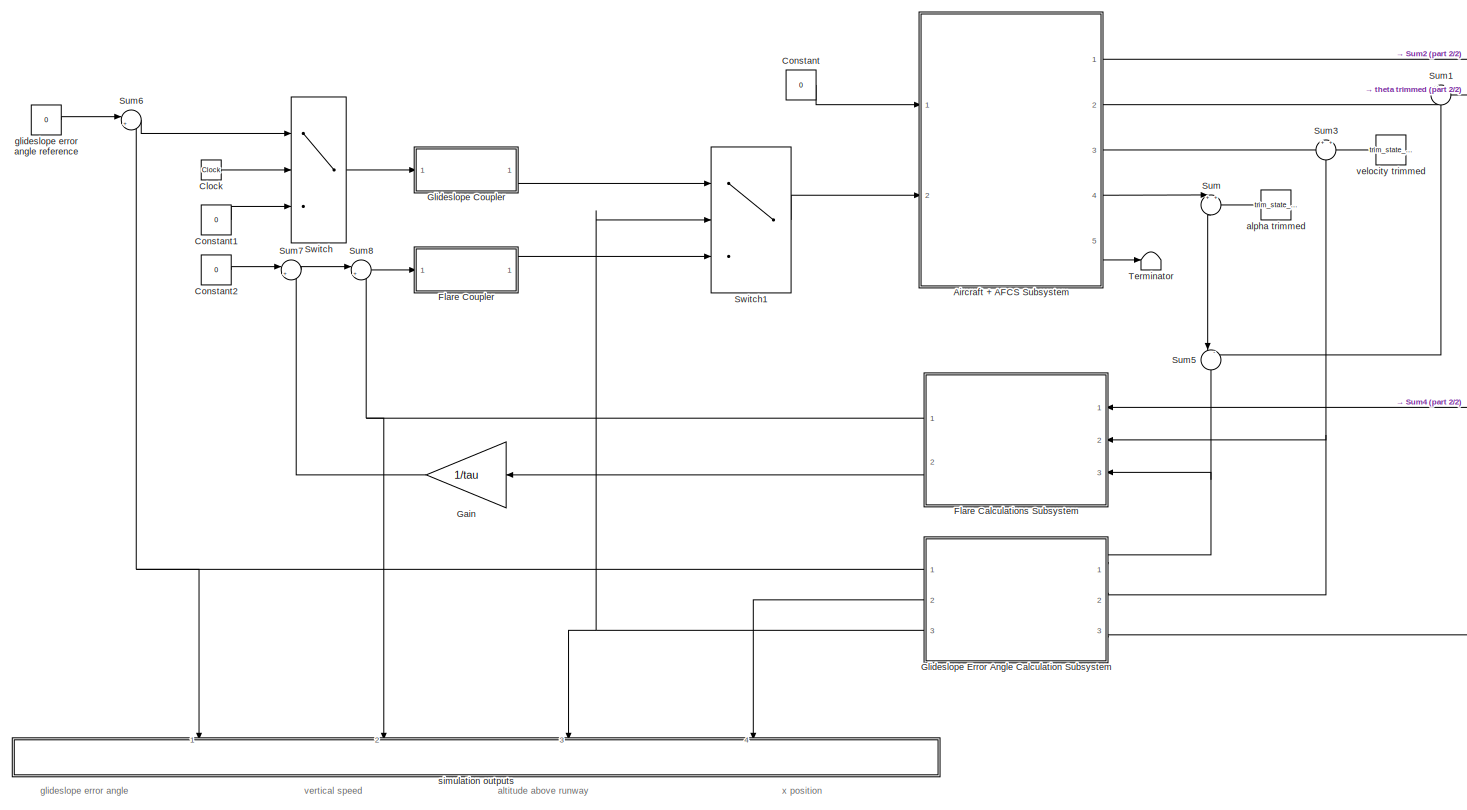
[diagram: root canvas - part 1/2, most of the canvas]
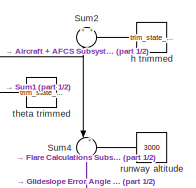
[diagram: root canvas - part 2/2, top right region]
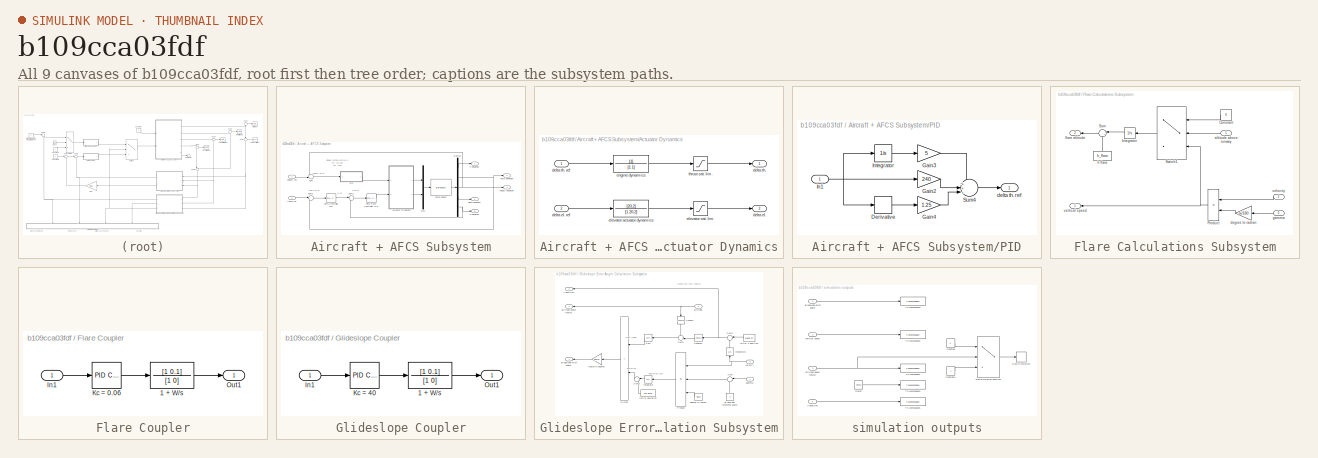
[diagram: thumbnail index - all 9 canvases of the model, root first then tree order]
MODEL slx_b109cca03fdf
KIND model
CONFIG AbsTol = auto
CONFIG EnableMultiTasking = off
CONFIG FixedStep = auto
CONFIG MaxStep = auto
CONFIG MinStep = auto
CONFIG RelTol = 1e-3
CONFIG SampleTimeConstraint = Unconstrained
CONFIG SolverName = VariableStepAuto
CONFIG StartTime = 0.0
CONFIG StopTime = 145
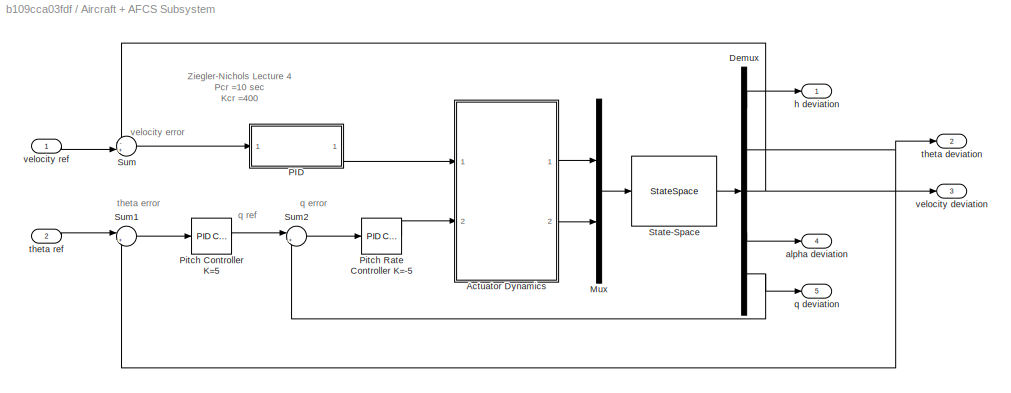
BLOCK [SubSystem] Aircraft + AFCS Subsystem
  Ports = [2, 5]
  RequestExecContextInheritance = off
BLOCK [SubSystem] Aircraft + AFCS Subsystem/Actuator Dynamics
  Ports = [2, 2]
  RequestExecContextInheritance = off
BLOCK [Outport] Aircraft + AFCS Subsystem/Actuator Dynamics/delta el.
  Port = 2
BLOCK [Inport] Aircraft + AFCS Subsystem/Actuator Dynamics/delta el. ref
  Port = 2
BLOCK [Outport] Aircraft + AFCS Subsystem/Actuator Dynamics/delta th.
BLOCK [Inport] Aircraft + AFCS Subsystem/Actuator Dynamics/delta th. ref
BLOCK [TransferFcn] Aircraft + AFCS Subsystem/Actuator Dynamics/elevator actuator dynamics
  Denominator = [1 20.2]
  Numerator = [20.2]
BLOCK [Saturate] Aircraft + AFCS Subsystem/Actuator Dynamics/elevator sat. lim.
  LowerLimit = -20.8109
  UpperLimit = 29.1891
BLOCK [TransferFcn] Aircraft + AFCS Subsystem/Actuator Dynamics/engine dynamics
  Denominator = [1 1]
  NameLocation = top
BLOCK [Saturate] Aircraft + AFCS Subsystem/Actuator Dynamics/thrust sat. lim.
  LowerLimit = -1826.8165
  NameLocation = top
  UpperLimit = 16173.1835
BLOCK [Demux] Aircraft + AFCS Subsystem/Demux
  Outputs = 5
  Ports = [1, 5]
BLOCK [Mux] Aircraft + AFCS Subsystem/Mux
  DisplayOption = bar
  Inputs = 2
  Ports = [2, 1]
BLOCK [SubSystem] Aircraft + AFCS Subsystem/PID
  Ports = [1, 1]
  RequestExecContextInheritance = off
BLOCK [Derivative] Aircraft + AFCS Subsystem/PID/Derivative
BLOCK [Gain] Aircraft + AFCS Subsystem/PID/Gain2
  Gain = 240
BLOCK [Gain] Aircraft + AFCS Subsystem/PID/Gain3
  Gain = 5
BLOCK [Gain] Aircraft + AFCS Subsystem/PID/Gain4
  Gain = 1.25
BLOCK [Inport] Aircraft + AFCS Subsystem/PID/In1
BLOCK [Integrator] Aircraft + AFCS Subsystem/PID/Integrator
  Ports = [1, 1]
BLOCK [Sum] Aircraft + AFCS Subsystem/PID/Sum4
  Inputs = +++|
  Ports = [3, 1]
BLOCK [Outport] Aircraft + AFCS Subsystem/PID/delta th. ref
BLOCK [Reference] Aircraft + AFCS Subsystem/Pitch Controller K=5  REF=slpidlib/PID Controller
  Ports = [1, 1]
  SourceBlock = slpidlib/PID Controller
  SourceProductBaseCode = SL
  SourceType = PID 1dof
BLOCK [Reference] Aircraft + AFCS Subsystem/Pitch Rate Controller K=-5  REF=slpidlib/PID Controller
  Ports = [1, 1]
  SourceBlock = slpidlib/PID Controller
  SourceProductBaseCode = SL
  SourceType = PID 1dof
BLOCK [StateSpace] Aircraft + AFCS Subsystem/State-Space
  A = SS_long_lo.A
  B = SS_long_lo.B
  C = SS_long_lo.C
  D = SS_long_lo.D
  InitialCondition = 0
  Ports = [1, 1]
BLOCK [Sum] Aircraft + AFCS Subsystem/Sum
  Inputs = -+|
  Ports = [2, 1]
BLOCK [Sum] Aircraft + AFCS Subsystem/Sum1
  Inputs = |+-
  Ports = [2, 1]
BLOCK [Sum] Aircraft + AFCS Subsystem/Sum2
  Inputs = |+-
  Ports = [2, 1]
BLOCK [Outport] Aircraft + AFCS Subsystem/alpha deviation
  Port = 4
BLOCK [Outport] Aircraft + AFCS Subsystem/h deviation
BLOCK [Outport] Aircraft + AFCS Subsystem/q deviation
  Port = 5
BLOCK [Outport] Aircraft + AFCS Subsystem/theta deviation
  Port = 2
BLOCK [Inport] Aircraft + AFCS Subsystem/theta ref
  Port = 2
BLOCK [Outport] Aircraft + AFCS Subsystem/velocity deviation
  Port = 3
BLOCK [Inport] Aircraft + AFCS Subsystem/velocity ref
BLOCK [Clock] Clock
BLOCK [Constant] Constant
  Value = 0
BLOCK [Constant] Constant1
  Value = 0
BLOCK [Constant] Constant2
  Value = 0
BLOCK [SubSystem] Flare Calculations Subsystem
  NameLocation = top
  Ports = [3, 2]
  RequestExecContextInheritance = off
BLOCK [Constant] Flare Calculations Subsystem/Constant
  NameLocation = top
  Value = 0
BLOCK [Integrator] Flare Calculations Subsystem/Integrator
  NameLocation = top
  Ports = [1, 1]
BLOCK [Product] Flare Calculations Subsystem/Product
  NameLocation = top
  Ports = [2, 1]
BLOCK [Sum] Flare Calculations Subsystem/Sum
  Inputs = |++
  NameLocation = top
  Ports = [2, 1]
BLOCK [Switch] Flare Calculations Subsystem/Switch1
  Criteria = u2 > Threshold
  InputSameDT = off
  NameLocation = top
  SaturateOnIntegerOverflow = off
  Threshold = h_flare
BLOCK [Inport] Flare Calculations Subsystem/altitude above runway
  NameLocation = top
BLOCK [Gain] Flare Calculations Subsystem/degree to radian
  Gain = pi/180
BLOCK [Outport] Flare Calculations Subsystem/flare altitude
  NameLocation = top
  Port = 2
BLOCK [Inport] Flare Calculations Subsystem/gamma
  NameLocation = top
  Port = 3
BLOCK [Constant] Flare Calculations Subsystem/h flare
  Value = h_flare
BLOCK [Inport] Flare Calculations Subsystem/velocity
  NameLocation = top
  Port = 2
BLOCK [Outport] Flare Calculations Subsystem/vertical speed
  NameLocation = top
BLOCK [SubSystem] Flare Coupler
  Ports = [1, 1]
  RequestExecContextInheritance = off
BLOCK [TransferFcn] Flare Coupler/1 + W//s
  Denominator = [1 0]
  Numerator = [1 0.1]
BLOCK [Inport] Flare Coupler/In1
BLOCK [Reference] Flare Coupler/Kc = 0.06  REF=slpidlib/PID Controller
  Ports = [1, 1]
  SourceBlock = slpidlib/PID Controller
  SourceProductBaseCode = SL
  SourceType = PID 1dof
BLOCK [Outport] Flare Coupler/Out1
BLOCK [Gain] Gain
  Gain = 1/tau
  NameLocation = top
BLOCK [SubSystem] Glideslope Coupler
  Ports = [1, 1]
  RequestExecContextInheritance = off
BLOCK [TransferFcn] Glideslope Coupler/1 + W//s
  Denominator = [1 0]
  Numerator = [1 0.1]
BLOCK [Inport] Glideslope Coupler/In1
BLOCK [Reference] Glideslope Coupler/Kc = 40  REF=slpidlib/PID Controller
  Ports = [1, 1]
  SourceBlock = slpidlib/PID Controller
  SourceProductBaseCode = SL
  SourceType = PID 1dof
BLOCK [Outport] Glideslope Coupler/Out1
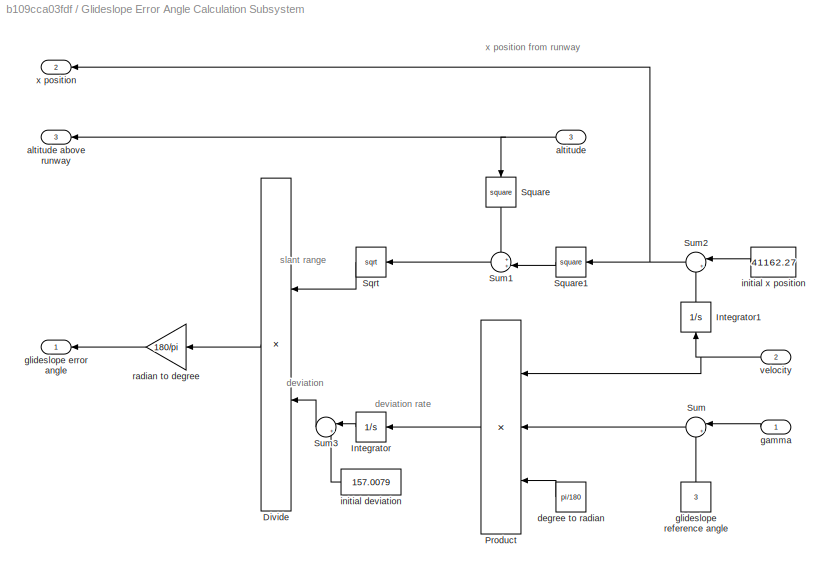
BLOCK [SubSystem] Glideslope Error Angle Calculation Subsystem
  NameLocation = top
  Ports = [3, 3]
  RequestExecContextInheritance = off
BLOCK [Product] Glideslope Error Angle Calculation Subsystem/Divide
  Inputs = /*
  NameLocation = top
  Ports = [2, 1]
BLOCK [Integrator] Glideslope Error Angle Calculation Subsystem/Integrator
  NameLocation = top
  Ports = [1, 1]
BLOCK [Integrator] Glideslope Error Angle Calculation Subsystem/Integrator1
  NameLocation = right
  Ports = [1, 1]
BLOCK [Product] Glideslope Error Angle Calculation Subsystem/Product
  Inputs = 3
  NameLocation = top
  Ports = [3, 1]
BLOCK [Sqrt] Glideslope Error Angle Calculation Subsystem/Sqrt
  NameLocation = top
BLOCK [Math] Glideslope Error Angle Calculation Subsystem/Square
  NameLocation = left
  Operator = square
  Ports = [1, 1]
BLOCK [Math] Glideslope Error Angle Calculation Subsystem/Square1
  NameLocation = top
  Operator = square
  Ports = [1, 1]
BLOCK [Sum] Glideslope Error Angle Calculation Subsystem/Sum
  Inputs = |++
  NameLocation = top
  Ports = [2, 1]
BLOCK [Sum] Glideslope Error Angle Calculation Subsystem/Sum1
  Inputs = ++|
  NameLocation = top
  Ports = [2, 1]
BLOCK [Sum] Glideslope Error Angle Calculation Subsystem/Sum2
  Inputs = |+-
  NameLocation = top
  Ports = [2, 1]
BLOCK [Sum] Glideslope Error Angle Calculation Subsystem/Sum3
  Inputs = |+-
  NameLocation = top
  Ports = [2, 1]
BLOCK [Inport] Glideslope Error Angle Calculation Subsystem/altitude
  NameLocation = top
  Port = 3
BLOCK [Outport] Glideslope Error Angle Calculation Subsystem/altitude above runway
  NameLocation = top
  Port = 3
BLOCK [Constant] Glideslope Error Angle Calculation Subsystem/degree to radian
  Value = pi/180
BLOCK [Inport] Glideslope Error Angle Calculation Subsystem/gamma
  NameLocation = top
BLOCK [Outport] Glideslope Error Angle Calculation Subsystem/glideslope error angle
  NameLocation = top
BLOCK [Constant] Glideslope Error Angle Calculation Subsystem/glideslope reference angle
  NameLocation = right
  Value = 3
BLOCK [Constant] Glideslope Error Angle Calculation Subsystem/initial deviation
  Value = 157.0079
BLOCK [Constant] Glideslope Error Angle Calculation Subsystem/initial x position
  NameLocation = top
  Value = 41162.27
BLOCK [Gain] Glideslope Error Angle Calculation Subsystem/radian to degree
  Gain = 180/pi
BLOCK [Inport] Glideslope Error Angle Calculation Subsystem/velocity
  NameLocation = top
  Port = 2
BLOCK [Outport] Glideslope Error Angle Calculation Subsystem/x position
  NameLocation = top
  Port = 2
BLOCK [Sum] Sum
  Inputs = +|+
  NameLocation = left
  Ports = [2, 1]
BLOCK [Sum] Sum1
  Inputs = +|+
  NameLocation = left
  Ports = [2, 1]
BLOCK [Sum] Sum2
  Inputs = +|+
  NameLocation = left
  Ports = [2, 1]
BLOCK [Sum] Sum3
  Inputs = +|+
  NameLocation = left
  Ports = [2, 1]
BLOCK [Sum] Sum4
  Inputs = |+-
  NameLocation = left
  Ports = [2, 1]
BLOCK [Sum] Sum5
  Inputs = |-+
  NameLocation = left
  Ports = [2, 1]
BLOCK [Sum] Sum6
  Inputs = |+-
  Ports = [2, 1]
BLOCK [Sum] Sum7
  Inputs = |+-
  Ports = [2, 1]
BLOCK [Sum] Sum8
  Inputs = |+-
  Ports = [2, 1]
BLOCK [Switch] Switch
  Criteria = u2 > Threshold
  InputSameDT = off
  SaturateOnIntegerOverflow = off
  Threshold = 10
BLOCK [Switch] Switch1
  Criteria = u2 > Threshold
  InputSameDT = off
  SaturateOnIntegerOverflow = off
  Threshold = h_flare
BLOCK [Terminator] Terminator
BLOCK [Constant] alpha trimmed
  Value = trim_state_lin(8)
BLOCK [Constant] glideslope error angle reference
  Value = 0
BLOCK [Constant] h trimmed
  Value = trim_state_lin(3)
BLOCK [Constant] runway altitude
  Value = 3000
BLOCK [SubSystem] simulation outputs
  NameLocation = top
  Ports = [4]
  RequestExecContextInheritance = off
BLOCK [Constant] simulation outputs/Constant
  Value = 0
BLOCK [Constant] simulation outputs/Constant1
BLOCK [Reference] simulation outputs/Ramp  REF=simulink/Sources/Ramp
  Ports = [0, 1]
  SourceBlock = simulink/Sources/Ramp
  SourceProductBaseCode = SL
  SourceType = Ramp
BLOCK [Stop] simulation outputs/Stop Simulation
BLOCK [ToWorkspace] simulation outputs/To Workspace
  FixptAsFi = on
  MaxDataPoints = inf
  Ports = [1]
  SampleTime = -1
  SaveFormat = Structure With Time
  VariableName = altitude
BLOCK [ToWorkspace] simulation outputs/To Workspace1
  FixptAsFi = on
  MaxDataPoints = inf
  Ports = [1]
  SampleTime = -1
  SaveFormat = Structure With Time
  VariableName = x_position
BLOCK [ToWorkspace] simulation outputs/To Workspace2
  FixptAsFi = on
  MaxDataPoints = inf
  Ports = [1]
  SampleTime = -1
  SaveFormat = Structure With Time
  VariableName = v_speed
BLOCK [ToWorkspace] simulation outputs/To Workspace3
  FixptAsFi = on
  MaxDataPoints = inf
  Ports = [1]
  SampleTime = -1
  SaveFormat = Structure With Time
  VariableName = glideslope_error
BLOCK [ToWorkspace] simulation outputs/To Workspace4
  FixptAsFi = on
  MaxDataPoints = inf
  Ports = [1]
  SampleTime = -1
  SaveFormat = Structure With Time
  VariableName = glideslope_ref
BLOCK [Inport] simulation outputs/altitude above runway
  Port = 3
BLOCK [Inport] simulation outputs/glideslope error angle
BLOCK [Switch] simulation outputs/stop simulation once h=0
  Criteria = u2 > Threshold
  InputSameDT = off
  SaturateOnIntegerOverflow = off
BLOCK [Inport] simulation outputs/vertical speed
  Port = 2
BLOCK [Inport] simulation outputs/x position
  Port = 4
BLOCK [Constant] theta trimmed
  Value = trim_state_lin(5)
BLOCK [Constant] velocity trimmed
  Value = trim_state_lin(7)
ANNOTATION (root): altitude above runway
ANNOTATION (root): glideslope error angle
ANNOTATION (root): vertical speed
ANNOTATION (root): x position
ANNOTATION Aircraft + AFCS Subsystem: Ziegler-Nichols Lecture 4 Pcr =10 sec Kcr =400
ANNOTATION Aircraft + AFCS Subsystem: q error
ANNOTATION Aircraft + AFCS Subsystem: q ref
ANNOTATION Aircraft + AFCS Subsystem: theta error
ANNOTATION Aircraft + AFCS Subsystem: velocity error
ANNOTATION Glideslope Error Angle Calculation Subsystem: deviation
ANNOTATION Glideslope Error Angle Calculation Subsystem: deviation rate
ANNOTATION Glideslope Error Angle Calculation Subsystem: slant range
ANNOTATION Glideslope Error Angle Calculation Subsystem: x position from runway
LINE Aircraft + AFCS Subsystem/Actuator Dynamics/delta el. ref:1 -> Aircraft + AFCS Subsystem/Actuator Dynamics/elevator actuator dynamics:1
LINE Aircraft + AFCS Subsystem/Actuator Dynamics/delta th. ref:1 -> Aircraft + AFCS Subsystem/Actuator Dynamics/engine dynamics:1
LINE Aircraft + AFCS Subsystem/Actuator Dynamics/elevator actuator dynamics:1 -> Aircraft + AFCS Subsystem/Actuator Dynamics/elevator sat. lim.:1
LINE Aircraft + AFCS Subsystem/Actuator Dynamics/elevator sat. lim.:1 -> Aircraft + AFCS Subsystem/Actuator Dynamics/delta el.:1
LINE Aircraft + AFCS Subsystem/Actuator Dynamics/engine dynamics:1 -> Aircraft + AFCS Subsystem/Actuator Dynamics/thrust sat. lim.:1
LINE Aircraft + AFCS Subsystem/Actuator Dynamics/thrust sat. lim.:1 -> Aircraft + AFCS Subsystem/Actuator Dynamics/delta th.:1
LINE Aircraft + AFCS Subsystem/Actuator Dynamics:1 -> Aircraft + AFCS Subsystem/Mux:1
LINE Aircraft + AFCS Subsystem/Actuator Dynamics:2 -> Aircraft + AFCS Subsystem/Mux:2
LINE Aircraft + AFCS Subsystem/Demux:1 -> Aircraft + AFCS Subsystem/h deviation:1
NET Aircraft + AFCS Subsystem/Demux:2 -> Aircraft + AFCS Subsystem/Sum1:2, Aircraft + AFCS Subsystem/theta deviation:1
NET Aircraft + AFCS Subsystem/Demux:3 -> Aircraft + AFCS Subsystem/Sum:1, Aircraft + AFCS Subsystem/velocity deviation:1
LINE Aircraft + AFCS Subsystem/Demux:4 -> Aircraft + AFCS Subsystem/alpha deviation:1
NET Aircraft + AFCS Subsystem/Demux:5 -> Aircraft + AFCS Subsystem/Sum2:2, Aircraft + AFCS Subsystem/q deviation:1
LINE Aircraft + AFCS Subsystem/Mux:1 -> Aircraft + AFCS Subsystem/State-Space:1
LINE Aircraft + AFCS Subsystem/PID/Derivative:1 -> Aircraft + AFCS Subsystem/PID/Gain4:1
LINE Aircraft + AFCS Subsystem/PID/Gain2:1 -> Aircraft + AFCS Subsystem/PID/Sum4:2
LINE Aircraft + AFCS Subsystem/PID/Gain3:1 -> Aircraft + AFCS Subsystem/PID/Sum4:1
LINE Aircraft + AFCS Subsystem/PID/Gain4:1 -> Aircraft + AFCS Subsystem/PID/Sum4:3
NET Aircraft + AFCS Subsystem/PID/In1:1 -> Aircraft + AFCS Subsystem/PID/Derivative:1, Aircraft + AFCS Subsystem/PID/Gain2:1, Aircraft + AFCS Subsystem/PID/Integrator:1
LINE Aircraft + AFCS Subsystem/PID/Integrator:1 -> Aircraft + AFCS Subsystem/PID/Gain3:1
LINE Aircraft + AFCS Subsystem/PID/Sum4:1 -> Aircraft + AFCS Subsystem/PID/delta th. ref:1
LINE Aircraft + AFCS Subsystem/PID:1 -> Aircraft + AFCS Subsystem/Actuator Dynamics:1
LINE Aircraft + AFCS Subsystem/Pitch Controller K=5:1 -> Aircraft + AFCS Subsystem/Sum2:1
LINE Aircraft + AFCS Subsystem/Pitch Rate Controller K=-5:1 -> Aircraft + AFCS Subsystem/Actuator Dynamics:2
LINE Aircraft + AFCS Subsystem/State-Space:1 -> Aircraft + AFCS Subsystem/Demux:1
LINE Aircraft + AFCS Subsystem/Sum1:1 -> Aircraft + AFCS Subsystem/Pitch Controller K=5:1
LINE Aircraft + AFCS Subsystem/Sum2:1 -> Aircraft + AFCS Subsystem/Pitch Rate Controller K=-5:1
LINE Aircraft + AFCS Subsystem/Sum:1 -> Aircraft + AFCS Subsystem/PID:1
LINE Aircraft + AFCS Subsystem/theta ref:1 -> Aircraft + AFCS Subsystem/Sum1:1
LINE Aircraft + AFCS Subsystem/velocity ref:1 -> Aircraft + AFCS Subsystem/Sum:2
LINE Aircraft + AFCS Subsystem:1 -> Sum2:1
LINE Aircraft + AFCS Subsystem:2 -> Sum1:1
LINE Aircraft + AFCS Subsystem:3 -> Sum3:1
LINE Aircraft + AFCS Subsystem:4 -> Sum:1
LINE Aircraft + AFCS Subsystem:5 -> Terminator:1
LINE Clock:1 -> Switch:2
LINE Constant1:1 -> Switch:3
LINE Constant2:1 -> Sum7:1
LINE Constant:1 -> Aircraft + AFCS Subsystem:1
LINE Flare Calculations Subsystem/Constant:1 -> Flare Calculations Subsystem/Switch1:1
LINE Flare Calculations Subsystem/Integrator:1 -> Flare Calculations Subsystem/Sum:1
NET Flare Calculations Subsystem/Product:1 -> Flare Calculations Subsystem/Switch1:3, Flare Calculations Subsystem/vertical speed:1
LINE Flare Calculations Subsystem/Sum:1 -> Flare Calculations Subsystem/flare altitude:1
LINE Flare Calculations Subsystem/Switch1:1 -> Flare Calculations Subsystem/Integrator:1
LINE Flare Calculations Subsystem/altitude above runway:1 -> Flare Calculations Subsystem/Switch1:2
LINE Flare Calculations Subsystem/degree to radian:1 -> Flare Calculations Subsystem/Product:2
LINE Flare Calculations Subsystem/gamma:1 -> Flare Calculations Subsystem/degree to radian:1
LINE Flare Calculations Subsystem/h flare:1 -> Flare Calculations Subsystem/Sum:2
LINE Flare Calculations Subsystem/velocity:1 -> Flare Calculations Subsystem/Product:1
NET Flare Calculations Subsystem:1 -> Sum8:2, simulation outputs:2
LINE Flare Calculations Subsystem:2 -> Gain:1
LINE Flare Coupler/1 + W//s:1 -> Flare Coupler/Out1:1
LINE Flare Coupler/In1:1 -> Flare Coupler/Kc = 0.06:1
LINE Flare Coupler/Kc = 0.06:1 -> Flare Coupler/1 + W//s:1
LINE Flare Coupler:1 -> Switch1:3
LINE Gain:1 -> Sum7:2
LINE Glideslope Coupler/1 + W//s:1 -> Glideslope Coupler/Out1:1
LINE Glideslope Coupler/In1:1 -> Glideslope Coupler/Kc = 40:1
LINE Glideslope Coupler/Kc = 40:1 -> Glideslope Coupler/1 + W//s:1
LINE Glideslope Coupler:1 -> Switch1:1
LINE Glideslope Error Angle Calculation Subsystem/Divide:1 -> Glideslope Error Angle Calculation Subsystem/radian to degree:1
LINE Glideslope Error Angle Calculation Subsystem/Integrator1:1 -> Glideslope Error Angle Calculation Subsystem/Sum2:2
LINE Glideslope Error Angle Calculation Subsystem/Integrator:1 -> Glideslope Error Angle Calculation Subsystem/Sum3:1
LINE Glideslope Error Angle Calculation Subsystem/Product:1 -> Glideslope Error Angle Calculation Subsystem/Integrator:1
LINE Glideslope Error Angle Calculation Subsystem/Sqrt:1 -> Glideslope Error Angle Calculation Subsystem/Divide:1
LINE Glideslope Error Angle Calculation Subsystem/Square1:1 -> Glideslope Error Angle Calculation Subsystem/Sum1:2
LINE Glideslope Error Angle Calculation Subsystem/Square:1 -> Glideslope Error Angle Calculation Subsystem/Sum1:1
LINE Glideslope Error Angle Calculation Subsystem/Sum1:1 -> Glideslope Error Angle Calculation Subsystem/Sqrt:1
NET Glideslope Error Angle Calculation Subsystem/Sum2:1 -> Glideslope Error Angle Calculation Subsystem/Square1:1, Glideslope Error Angle Calculation Subsystem/x position:1
LINE Glideslope Error Angle Calculation Subsystem/Sum3:1 -> Glideslope Error Angle Calculation Subsystem/Divide:2
LINE Glideslope Error Angle Calculation Subsystem/Sum:1 -> Glideslope Error Angle Calculation Subsystem/Product:2
NET Glideslope Error Angle Calculation Subsystem/altitude:1 -> Glideslope Error Angle Calculation Subsystem/Square:1, Glideslope Error Angle Calculation Subsystem/altitude above runway:1
LINE Glideslope Error Angle Calculation Subsystem/degree to radian:1 -> Glideslope Error Angle Calculation Subsystem/Product:3
LINE Glideslope Error Angle Calculation Subsystem/gamma:1 -> Glideslope Error Angle Calculation Subsystem/Sum:1
LINE Glideslope Error Angle Calculation Subsystem/glideslope reference angle:1 -> Glideslope Error Angle Calculation Subsystem/Sum:2
LINE Glideslope Error Angle Calculation Subsystem/initial deviation:1 -> Glideslope Error Angle Calculation Subsystem/Sum3:2
LINE Glideslope Error Angle Calculation Subsystem/initial x position:1 -> Glideslope Error Angle Calculation Subsystem/Sum2:1
LINE Glideslope Error Angle Calculation Subsystem/radian to degree:1 -> Glideslope Error Angle Calculation Subsystem/glideslope error angle:1
NET Glideslope Error Angle Calculation Subsystem/velocity:1 -> Glideslope Error Angle Calculation Subsystem/Integrator1:1, Glideslope Error Angle Calculation Subsystem/Product:1
NET Glideslope Error Angle Calculation Subsystem:1 -> Sum6:2, simulation outputs:1
LINE Glideslope Error Angle Calculation Subsystem:2 -> simulation outputs:4
NET Glideslope Error Angle Calculation Subsystem:3 -> Switch1:2, simulation outputs:3
LINE Sum1:1 -> Sum5:2
LINE Sum2:1 -> Sum4:1
NET Sum3:1 -> Flare Calculations Subsystem:2, Glideslope Error Angle Calculation Subsystem:2
NET Sum4:1 -> Flare Calculations Subsystem:1, Glideslope Error Angle Calculation Subsystem:3
NET Sum5:1 -> Flare Calculations Subsystem:3, Glideslope Error Angle Calculation Subsystem:1
LINE Sum6:1 -> Switch:1
LINE Sum7:1 -> Sum8:1
LINE Sum8:1 -> Flare Coupler:1
LINE Sum:1 -> Sum5:1
LINE Switch1:1 -> Aircraft + AFCS Subsystem:2
LINE Switch:1 -> Glideslope Coupler:1
LINE alpha trimmed:1 -> Sum:2
LINE glideslope error angle reference:1 -> Sum6:1
LINE h trimmed:1 -> Sum2:2
LINE runway altitude:1 -> Sum4:2
LINE simulation outputs/Constant1:1 -> simulation outputs/stop simulation once h=0:3
LINE simulation outputs/Constant:1 -> simulation outputs/stop simulation once h=0:1
LINE simulation outputs/Ramp:1 -> simulation outputs/To Workspace4:1
NET simulation outputs/altitude above runway:1 -> simulation outputs/To Workspace:1, simulation outputs/stop simulation once h=0:2
LINE simulation outputs/glideslope error angle:1 -> simulation outputs/To Workspace3:1
LINE simulation outputs/stop simulation once h=0:1 -> simulation outputs/Stop Simulation:1
LINE simulation outputs/vertical speed:1 -> simulation outputs/To Workspace2:1
LINE simulation outputs/x position:1 -> simulation outputs/To Workspace1:1
LINE theta trimmed:1 -> Sum1:2
LINE velocity trimmed:1 -> Sum3:2
note: NET lines group one-source signal fan-out (src -> all destinations, sorted); 1:1 wires keep LINE
